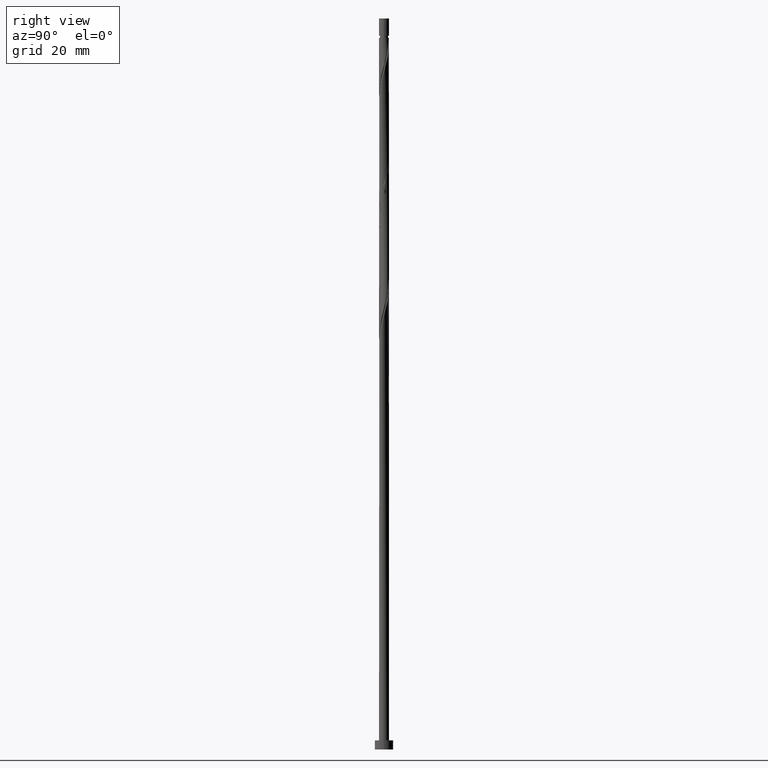
[diagram: clean part render]
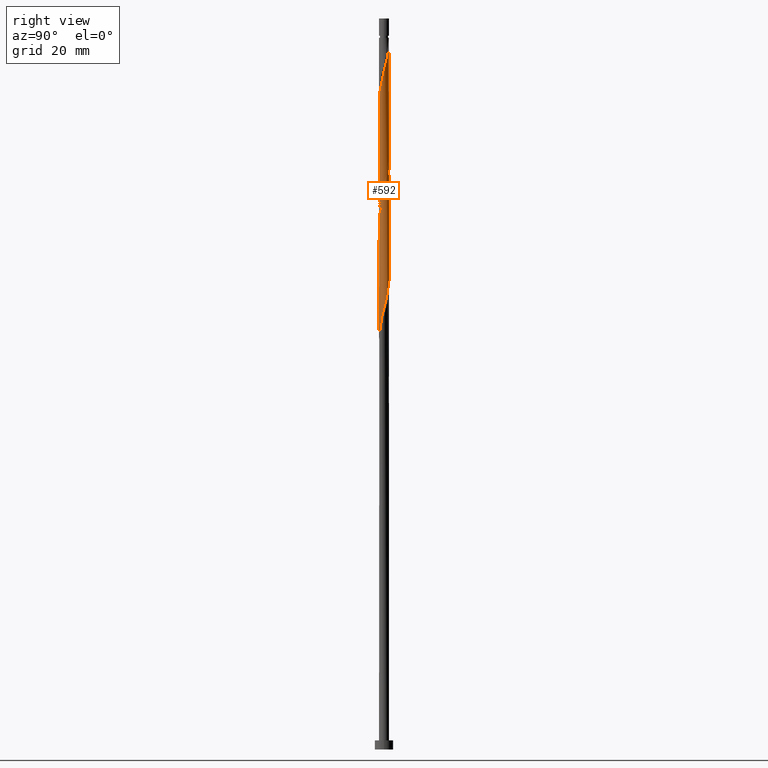
[diagram: same view with one face highlighted and labeled with its STEP entity id]
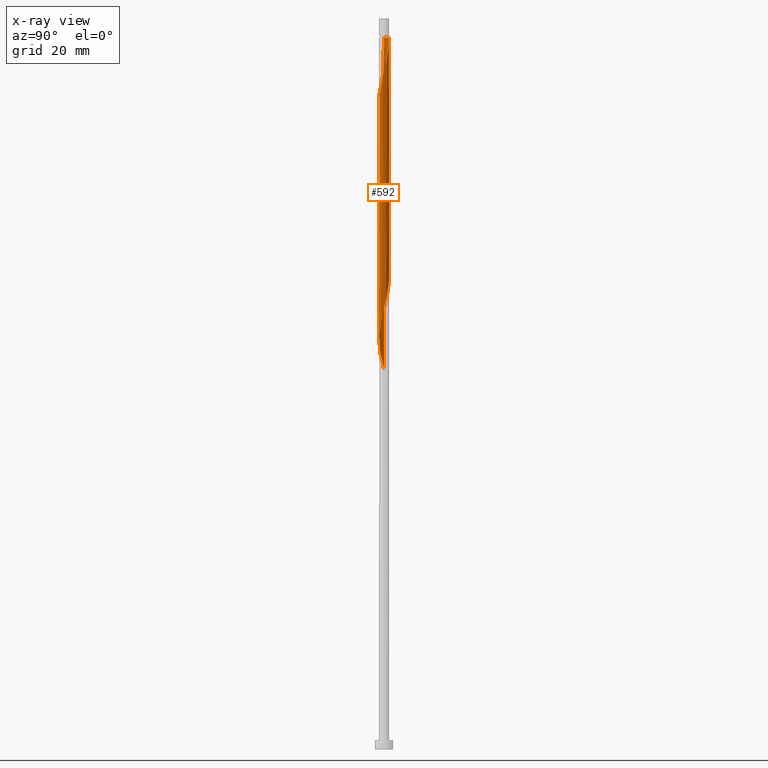
[diagram: x-ray of the same camera — body ghosted, the highlighted face saturated]
A machine part, right view. The second image highlights one B-rep face of the part: STEP entity #592.
The next image is the same camera in x-ray: the body ghosted, the highlighted face saturated — about 0% of this face is hidden behind the body in this view.
In plain terms, the highlighted cylindrical surface (bore or boss wall) has radius 1.1 mm, axis along (-0, -0, -1).
Its self-contained STEP definition (entity closure, byte-faithful):
#5 = CARTESIAN_POINT ( 'NONE',  ( 0.9826650609611464748, -0.5190209411318559285, 94.58110485723662464 ) ) ;
#21 = CARTESIAN_POINT ( 'NONE',  ( 0.2512589077020579431, -1.082535135996767206, 90.94474122087299861 ) ) ;
#37 = VERTEX_POINT ( 'NONE', #1525 ) ;
#49 = EDGE_CURVE ( 'NONE', #1517, #1114, #1267, .T. ) ;
#61 = CARTESIAN_POINT ( 'NONE',  ( 0.000000000000000000, 0.000000000000000000, 155.7932260693578428 ) ) ;
#74 = CARTESIAN_POINT ( 'NONE',  ( -0.3986627279676447921, 1.025216089090196903, 104.8841351602669079 ) ) ;
#82 = CARTESIAN_POINT ( 'NONE',  ( 1.100000000000001199, 1.271329759797166640E-15, 123.3093472153253742 ) ) ;
#83 = CARTESIAN_POINT ( 'NONE',  ( 0.6535858755450256741, 0.8987985662289481592, 100.6417109178427012 ) ) ;
#91 = CARTESIAN_POINT ( 'NONE',  ( -0.2512589077020578321, 1.082535135996767206, 104.2780745542063272 ) ) ;
#109 = CARTESIAN_POINT ( 'NONE',  ( -1.098179839110718037, 0.06325378226446302932, 109.7326200087517947 ) ) ;
#110 = CARTESIAN_POINT ( 'NONE',  ( 0.8803318733882239400, 0.6782544891587158897, 126.0962563723881686 ) ) ;
#123 = VECTOR ( 'NONE', #1207, 1000.000000000000000 ) ;
#129 = CARTESIAN_POINT ( 'NONE',  ( -0.9826650609611464748, 0.5190209411318560395, 134.5811048572366246 ) ) ;
#135 = CARTESIAN_POINT ( 'NONE',  ( -1.035758618384750696, -0.4027622671116078412, 84.88413516026693628 ) ) ;
#137 = CARTESIAN_POINT ( 'NONE',  ( -0.09367733623259097420, 1.096003903586282524, 130.3386806148123753 ) ) ;
#146 =( BOUNDED_CURVE ( )  B_SPLINE_CURVE ( 2, ( #1539, #476, #709, #1290, #486, #129, #220, #934, #353, #1199, #1402, #599, #137, #953, #836, #371, #817, #1299, #229, #110, #344, #1172, #1182, #1193, #699 ),
 .UNSPECIFIED., .F., .T. ) 
 B_SPLINE_CURVE_WITH_KNOTS ( ( 3, 2, 2, 2, 2, 2, 2, 2, 2, 2, 2, 2, 3 ),
 ( 0.4295252162417514397, 0.4318181818181818232, 0.4431818181818181768, 0.4545454545454545303, 0.4659090909090908839, 0.4772727272727272929, 0.4886363636363636465, 0.5000000000000000000, 0.5113636363636363535, 0.5227272727272727071, 0.5340909090909090606, 0.5454545454545454142, 0.5545252162417514397 ),
 .UNSPECIFIED. ) 
 CURVE ( )  GEOMETRIC_REPRESENTATION_ITEM ( )  RATIONAL_B_SPLINE_CURVE ( ( 0.9061101570135808858, 0.9072237824201631051, 0.9090909090909405910, 0.8998376744372426073, 0.9090909090909405910, 0.8998376744372426073, 0.9090909090909405910, 0.8998376744372426073, 0.9090909090909405910, 0.8998376744372426073, 0.9090909090909405910, 0.8998376744372426073, 0.9090909090909405910, 0.8998376744372426073, 0.9090909090909405910, 0.8998376744372426073, 0.9090909090909405910, 0.8998376744372426073, 0.9090909090909405910, 0.8998376744372426073, 0.9090909090909405910, 0.8998376744372426073, 0.9090909090909405910, 0.9017048011080199821, 0.9061101570135809968 ) ) 
 REPRESENTATION_ITEM ( '' )  );
#152 = CARTESIAN_POINT ( 'NONE',  ( -1.100000000000000089, 0.000000000000000000, 160.0000000000000000 ) ) ;
#154 = EDGE_CURVE ( 'NONE', #407, #1114, #146, .T. ) ;
#188 = CARTESIAN_POINT ( 'NONE',  ( -0.5460665482332321963, 0.9678970421836270432, 105.4901957663275738 ) ) ;
#189 = EDGE_CURVE ( 'NONE', #1100, #1260, #633, .T. ) ;
#196 = CARTESIAN_POINT ( 'NONE',  ( -0.9580452458864874288, -0.5405083781351616157, 112.1568624329941883 ) ) ;
#203 = DIRECTION ( 'NONE',  ( -0.000000000000000000, -0.000000000000000000, -1.000000000000000000 ) ) ;
#211 = CARTESIAN_POINT ( 'NONE',  ( 1.071516489199091593, 0.2487014543070787120, 97.61140788753962738 ) ) ;
#220 = CARTESIAN_POINT ( 'NONE',  ( -0.8896500927852523111, 0.6469333137249889676, 133.9750442511760014 ) ) ;
#224 = DIRECTION ( 'NONE',  ( -0.000000000000000000, -0.000000000000000000, -1.000000000000000000 ) ) ;
#228 = CARTESIAN_POINT ( 'NONE',  ( 0.3986627279676447921, -1.025216089090196903, 91.55080182693357926 ) ) ;
#229 = CARTESIAN_POINT ( 'NONE',  ( 0.7669588744666246960, 0.7885265276938319134, 126.7023169784487493 ) ) ;
#230 = CARTESIAN_POINT ( 'NONE',  ( 0.9826650609611466969, 0.5190209411318554844, 150.3386806148123469 ) ) ;
#239 = CARTESIAN_POINT ( 'NONE',  ( 1.035758618384751584, -0.4027622671116076747, 146.7023169784487493 ) ) ;
#248 = CARTESIAN_POINT ( 'NONE',  ( -0.2188972361634574926, -1.078000000000001402, 89.12655940269118560 ) ) ;
#312 = DIRECTION ( 'NONE',  ( -1.000000000000000000, 0.000000000000000000, 0.000000000000000000 ) ) ;
#316 = CARTESIAN_POINT ( 'NONE',  ( -0.6535858755450255630, -0.8987985662289481592, 113.9750442511760298 ) ) ;
#323 = CARTESIAN_POINT ( 'NONE',  ( -0.3986627279676454028, -1.025216089090197347, 140.0356503117821205 ) ) ;
#325 = DIRECTION ( 'NONE',  ( -1.000000000000000000, 0.000000000000000000, 0.000000000000000000 ) ) ;
#326 = CARTESIAN_POINT ( 'NONE',  ( 0.5460665482332320853, 0.9678970421836273763, 152.7629230390548116 ) ) ;
#331 = CARTESIAN_POINT ( 'NONE',  ( 0.06390423523687592533, -1.109472671175798286, 141.8538321299638767 ) ) ;
#334 = CARTESIAN_POINT ( 'NONE',  ( 0.7966351246093589245, -0.7748456863181224508, 120.0356503117820779 ) ) ;
#335 = CARTESIAN_POINT ( 'NONE',  ( 0.8803318733882241620, -0.6782544891587158897, 145.4901957663275596 ) ) ;
#343 = CARTESIAN_POINT ( 'NONE',  ( -0.6713508364212953383, 0.8713713642508746915, 106.0962563723881118 ) ) ;
#344 = CARTESIAN_POINT ( 'NONE',  ( 0.9580452458864873178, 0.5405083781351617267, 125.4901957663275311 ) ) ;
#353 = CARTESIAN_POINT ( 'NONE',  ( -0.6713508364212953383, 0.8713713642508746915, 132.7629230390547832 ) ) ;
#354 = CARTESIAN_POINT ( 'NONE',  ( 1.098179839110718481, 0.06325378226446277952, 148.5204987966305907 ) ) ;
#371 = CARTESIAN_POINT ( 'NONE',  ( 0.3738902370900390459, 1.046527328824204739, 128.5204987966305623 ) ) ;
#380 = CARTESIAN_POINT ( 'NONE',  ( -0.06390423523687623064, -1.109472671175797842, 89.73262000875178046 ) ) ;
#388 = CARTESIAN_POINT ( 'NONE',  ( 0.7966351246093589245, -0.7748456863181224508, 93.36898364511542070 ) ) ;
#406 = CARTESIAN_POINT ( 'NONE',  ( -0.06390423523688042173, 1.109472671175798508, 155.1871654632972479 ) ) ;
#407 = VERTEX_POINT ( 'NONE', #1159 ) ;
#417 = VERTEX_POINT ( 'NONE', #450 ) ;
#423 = CARTESIAN_POINT ( 'NONE',  ( -0.7669588744666250291, -0.7885265276938315804, 113.3689836451153923 ) ) ;
#429 = CARTESIAN_POINT ( 'NONE',  ( -0.9826650609611464748, 0.5190209411318560395, 107.9144381905699532 ) ) ;
#437 = CARTESIAN_POINT ( 'NONE',  ( 0.8896500927852525331, -0.6469333137249889676, 120.6417109178426728 ) ) ;
#445 = CARTESIAN_POINT ( 'NONE',  ( 1.089085318208004693, -0.2211482060314764464, 122.4598927360245142 ) ) ;
#446 = CARTESIAN_POINT ( 'NONE',  ( 0.6535858755450258961, -0.8987985662289482702, 144.2780745542063698 ) ) ;
#450 = CARTESIAN_POINT ( 'NONE',  ( -1.100000000000001199, -1.488203659997859560E-15, 83.30934721532540266 ) ) ;
#465 = CARTESIAN_POINT ( 'NONE',  ( 0.5460665482332320853, -0.9678970421836270432, 92.15686243299421676 ) ) ;
#476 = CARTESIAN_POINT ( 'NONE',  ( -1.100000000000001199, 0.03165307917620665407, 136.5205825439404634 ) ) ;
#477 = CARTESIAN_POINT ( 'NONE',  ( 0.9580452458864877618, -0.5405083781351618377, 146.0962563723881260 ) ) ;
#484 = VECTOR ( 'NONE', #203, 1000.000000000000000 ) ;
#486 = CARTESIAN_POINT ( 'NONE',  ( -1.035875189584575473, 0.3700845735816659654, 135.1871654632971911 ) ) ;
#493 = CARTESIAN_POINT ( 'NONE',  ( 0.8896500927852525331, -0.6469333137249889676, 93.97504425117600135 ) ) ;
#524 = ORIENTED_EDGE ( 'NONE', *, *, #1338, .F. ) ;
#537 = CARTESIAN_POINT ( 'NONE',  ( -1.100000000000001199, 1.084369501003464350E-16, 134.9437715900569401 ) ) ;
#554 = CARTESIAN_POINT ( 'NONE',  ( 0.7669588744666246960, 0.7885265276938319134, 100.0356503117820779 ) ) ;
#559 = VECTOR ( 'NONE', #1060, 1000.000000000000000 ) ;
#566 = CARTESIAN_POINT ( 'NONE',  ( -1.071516489199091593, -0.2487014543070790451, 110.9447412208729844 ) ) ;
#572 = CARTESIAN_POINT ( 'NONE',  ( 1.107274360013432490, 0.09464064150255011021, 97.00534728147906094 ) ) ;
#579 = CARTESIAN_POINT ( 'NONE',  ( -0.7966351246093584804, 0.7748456863181226728, 106.7023169784487777 ) ) ;
#592 = ADVANCED_FACE ( 'NONE', ( #1371 ), #1266, .T. ) ;
#598 = CARTESIAN_POINT ( 'NONE',  ( 0.6713508364212952273, -0.8713713642508748025, 92.76292303905479741 ) ) ;
#599 = CARTESIAN_POINT ( 'NONE',  ( -0.2512589077020578321, 1.082535135996767206, 130.9447412208729986 ) ) ;
#607 = CARTESIAN_POINT ( 'NONE',  ( -0.8803318733882244951, -0.6782544891587153346, 86.09625637238814022 ) ) ;
#608 = CARTESIAN_POINT ( 'NONE',  ( -0.9826650609611463638, -0.5190209411318559285, 137.0053472814790894 ) ) ;
#615 = CARTESIAN_POINT ( 'NONE',  ( 1.035875189584575473, -0.3700845735816660209, 95.18716546329720529 ) ) ;
#633 =( BOUNDED_CURVE ( )  B_SPLINE_CURVE ( 2, ( #962, #1528, #1430, #845, #1307, #608, #943, #1412, #904, #911, #323, #797, #1042, #331, #804, #1272, #1540, #446, #1393, #335, #477, #239, #722, #809, #354, #700, #827, #230, #915, #818, #1386, #326, #1373, #1138, #636, #406, #931 ),
 .UNSPECIFIED., .F., .T. ) 
 B_SPLINE_CURVE_WITH_KNOTS ( ( 3, 2, 2, 2, 2, 2, 2, 2, 2, 2, 2, 2, 2, 2, 2, 2, 2, 2, 3 ),
 ( 0.5545252162417509956, 0.5568181818181818787, 0.5681818181818181213, 0.5795454545454545858, 0.5909090909090909394, 0.6022727272727274039, 0.6136363636363637575, 0.6250000000000001110, 0.6363636363636364646, 0.6477272727272729291, 0.6590909090909093937, 0.6704545454545456362, 0.6818181818181821008, 0.6931818181818183433, 0.7045454545454548079, 0.7159090909090910504, 0.7272727272727275150, 0.7386363636363639795, 0.7500000000000003331 ),
 .UNSPECIFIED. ) 
 CURVE ( )  GEOMETRIC_REPRESENTATION_ITEM ( )  RATIONAL_B_SPLINE_CURVE ( ( 0.9061101570135814409, 0.9072237824201636602, 0.9090909090909415902, 0.8998376744372437175, 0.9090909090909415902, 0.8998376744372437175, 0.9090909090909415902, 0.8998376744372437175, 0.9090909090909415902, 0.8998376744372437175, 0.9090909090909415902, 0.8998376744372437175, 0.9090909090909415902, 0.8998376744372437175, 0.9090909090909415902, 0.8998376744372437175, 0.9090909090909415902, 0.8998376744372437175, 0.9090909090909415902, 0.8998376744372437175, 0.9090909090909415902, 0.8998376744372437175, 0.9090909090909415902, 0.8998376744372437175, 0.9090909090909415902, 0.8998376744372437175, 0.9090909090909415902, 0.8998376744372437175, 0.9090909090909415902, 0.8998376744372437175, 0.9090909090909415902, 0.8998376744372437175, 0.9090909090909415902, 0.8998376744372437175, 0.9090909090909415902, 0.8998376744372434954, 0.9090909090909418122 ) ) 
 REPRESENTATION_ITEM ( '' )  );
#636 = CARTESIAN_POINT ( 'NONE',  ( 0.09367733623259111297, 1.096003903586282746, 154.5811048572366246 ) ) ;
#665 = CARTESIAN_POINT ( 'NONE',  ( 0.2512589077020579431, -1.082535135996767206, 117.6114078875396558 ) ) ;
#674 = CARTESIAN_POINT ( 'NONE',  ( -1.035758618384750696, -0.4027622671116078412, 111.5508018269336219 ) ) ;
#682 = CARTESIAN_POINT ( 'NONE',  ( -0.3738902370900389349, -1.046527328824204739, 115.1871654632972621 ) ) ;
#690 = CARTESIAN_POINT ( 'NONE',  ( 1.098179839110718037, -0.06325378226446316809, 96.39928667541843765 ) ) ;
#698 = CARTESIAN_POINT ( 'NONE',  ( -0.06390423523687623064, -1.109472671175797842, 116.3992866754184519 ) ) ;
#699 = CARTESIAN_POINT ( 'NONE',  ( 1.100000000000001199, 1.271329759797166640E-15, 123.3093472153253742 ) ) ;
#700 = CARTESIAN_POINT ( 'NONE',  ( 1.089085318208004916, 0.2211482060314760301, 149.1265594026911572 ) ) ;
#709 = CARTESIAN_POINT ( 'NONE',  ( -1.098179839110718037, 0.06325378226446302932, 136.3992866754184377 ) ) ;
#722 = CARTESIAN_POINT ( 'NONE',  ( 1.071516489199092259, -0.2487014543070791284, 147.3083775845094010 ) ) ;
#727 = CARTESIAN_POINT ( 'NONE',  ( -1.071516489199091593, -0.2487014543070790451, 84.27807455420631300 ) ) ;
#779 = CARTESIAN_POINT ( 'NONE',  ( -0.8803318733882244951, -0.6782544891587153346, 112.7629230390547974 ) ) ;
#789 = CARTESIAN_POINT ( 'NONE',  ( 0.3738902370900390459, 1.046527328824204739, 101.8538321299639051 ) ) ;
#797 = CARTESIAN_POINT ( 'NONE',  ( -0.2512589077020578876, -1.082535135996767650, 140.6417109178426301 ) ) ;
#799 = CARTESIAN_POINT ( 'NONE',  ( 1.100000000000001199, 1.271329759797166640E-15, 123.3093472153253742 ) ) ;
#803 = CARTESIAN_POINT ( 'NONE',  ( 0.000000000000000000, 0.000000000000000000, 160.0000000000000000 ) ) ;
#804 = CARTESIAN_POINT ( 'NONE',  ( 0.2188972361634572983, -1.078000000000001624, 142.4598927360245284 ) ) ;
#808 = CARTESIAN_POINT ( 'NONE',  ( -0.2188972361634574926, -1.078000000000001402, 115.7932260693578286 ) ) ;
#809 = CARTESIAN_POINT ( 'NONE',  ( 1.107274360013432490, -0.09464064150255058205, 147.9144381905699390 ) ) ;
#817 = CARTESIAN_POINT ( 'NONE',  ( 0.5137380563175323323, 0.9726629475265762270, 127.9144381905699674 ) ) ;
#818 = CARTESIAN_POINT ( 'NONE',  ( 0.7966351246093590355, 0.7748456863181222287, 151.5508018269335651 ) ) ;
#826 = CARTESIAN_POINT ( 'NONE',  ( -0.3738902370900389349, -1.046527328824204739, 88.52049879663059073 ) ) ;
#827 = CARTESIAN_POINT ( 'NONE',  ( 1.035875189584575695, 0.3700845735816657989, 149.7326200087517805 ) ) ;
#835 = CARTESIAN_POINT ( 'NONE',  ( -0.6535858755450255630, -0.8987985662289481592, 87.30837758450934416 ) ) ;
#836 = CARTESIAN_POINT ( 'NONE',  ( 0.2188972361634576314, 1.078000000000001402, 129.1265594026911572 ) ) ;
#845 = CARTESIAN_POINT ( 'NONE',  ( -1.089085318208004916, -0.2211482060314761966, 135.7932260693578712 ) ) ;
#858 = CARTESIAN_POINT ( 'NONE',  ( 0.09367733623259061337, -1.096003903586282524, 90.33868061481237532 ) ) ;
#903 = CARTESIAN_POINT ( 'NONE',  ( -0.09367733623259097420, 1.096003903586282524, 103.6720139481457039 ) ) ;
#904 = CARTESIAN_POINT ( 'NONE',  ( -0.6713508364212954493, -0.8713713642508746915, 138.8235290996609024 ) ) ;
#911 = CARTESIAN_POINT ( 'NONE',  ( -0.5460665482332324183, -0.9678970421836270432, 139.4295897057214120 ) ) ;
#914 = CARTESIAN_POINT ( 'NONE',  ( -0.8896500927852523111, 0.6469333137249889676, 107.3083775845093584 ) ) ;
#915 = CARTESIAN_POINT ( 'NONE',  ( 0.8896500927852528662, 0.6469333137249887455, 150.9447412208729986 ) ) ;
#931 = CARTESIAN_POINT ( 'NONE',  ( -0.2188972361634883568, 1.078000000000312264, 155.7932260693578428 ) ) ;
#933 = CARTESIAN_POINT ( 'NONE',  ( 0.09367733623259061337, -1.096003903586282524, 117.0053472814790751 ) ) ;
#934 = CARTESIAN_POINT ( 'NONE',  ( -0.7966351246093584804, 0.7748456863181226728, 133.3689836451154349 ) ) ;
#942 = CARTESIAN_POINT ( 'NONE',  ( -0.7669588744666250291, -0.7885265276938315804, 86.70231697844873509 ) ) ;
#943 = CARTESIAN_POINT ( 'NONE',  ( -0.8896500927852528662, -0.6469333137249893007, 137.6114078875396842 ) ) ;
#953 = CARTESIAN_POINT ( 'NONE',  ( 0.06390423523687595309, 1.109472671175797842, 129.7326200087518089 ) ) ;
#958 =( BOUNDED_CURVE ( )  B_SPLINE_CURVE ( 2, ( #799, #1486, #1511, #445, #1392, #1052, #437, #334, #1282, #1037, #1365, #665, #933, #698, #808, #682, #1253, #316, #423, #779, #196, #674, #566, #1156, #109, #1401, #1027, #429, #914, #579, #343, #188, #74, #91, #903, #1375, #1268, #789, #1148, #83, #554, #1385, #1046, #1275, #211, #572, #690, #1164, #615, #5, #493, #388, #598, #465, #228, #21, #858, #380, #248, #826, #1421, #835, #942, #607, #1298, #135, #727, #1325, #1089 ),
 .UNSPECIFIED., .F., .T. ) 
 B_SPLINE_CURVE_WITH_KNOTS ( ( 3, 2, 2, 2, 2, 2, 2, 2, 2, 2, 2, 2, 2, 2, 2, 2, 2, 2, 2, 2, 2, 2, 2, 2, 2, 2, 2, 2, 2, 2, 2, 2, 2, 2, 3 ),
 ( 0.5545252162417514397, 0.5568181818181817677, 0.5681818181818182323, 0.5795454545454545858, 0.5909090909090909394, 0.6022727272727272929, 0.6136363636363636465, 0.6250000000000000000, 0.6363636363636363535, 0.6477272727272727071, 0.6590909090909090606, 0.6704545454545454142, 0.6818181818181817677, 0.6931818181818182323, 0.7045454545454545858, 0.7159090909090909394, 0.7272727272727272929, 0.7386363636363636465, 0.7500000000000000000, 0.7613636363636363535, 0.7727272727272727071, 0.7840909090909090606, 0.7954545454545454142, 0.8068181818181817677, 0.8181818181818182323, 0.8295454545454545858, 0.8409090909090909394, 0.8522727272727272929, 0.8636363636363636465, 0.8750000000000000000, 0.8863636363636363535, 0.8977272727272727071, 0.9090909090909090606, 0.9204545454545454142, 0.9295252162417512176 ),
 .UNSPECIFIED. ) 
 CURVE ( )  GEOMETRIC_REPRESENTATION_ITEM ( )  RATIONAL_B_SPLINE_CURVE ( ( 0.9061101570135809968, 0.9072237824201632161, 0.9090909090909405910, 0.8998376744372426073, 0.9090909090909405910, 0.8998376744372426073, 0.9090909090909405910, 0.8998376744372426073, 0.9090909090909405910, 0.8998376744372426073, 0.9090909090909405910, 0.8998376744372426073, 0.9090909090909405910, 0.8998376744372426073, 0.9090909090909405910, 0.8998376744372426073, 0.9090909090909405910, 0.8998376744372426073, 0.9090909090909405910, 0.8998376744372426073, 0.9090909090909405910, 0.8998376744372426073, 0.9090909090909405910, 0.8998376744372426073, 0.9090909090909405910, 0.8998376744372426073, 0.9090909090909405910, 0.8998376744372426073, 0.9090909090909405910, 0.8998376744372426073, 0.9090909090909405910, 0.8998376744372426073, 0.9090909090909405910, 0.8998376744372426073, 0.9090909090909405910, 0.8998376744372426073, 0.9090909090909405910, 0.8998376744372426073, 0.9090909090909405910, 0.8998376744372426073, 0.9090909090909405910, 0.8998376744372426073, 0.9090909090909405910, 0.8998376744372426073, 0.9090909090909405910, 0.8998376744372426073, 0.9090909090909405910, 0.8998376744372426073, 0.9090909090909405910, 0.8998376744372426073, 0.9090909090909405910, 0.8998376744372426073, 0.9090909090909405910, 0.8998376744372426073, 0.9090909090909405910, 0.8998376744372426073, 0.9090909090909405910, 0.8998376744372426073, 0.9090909090909405910, 0.8998376744372426073, 0.9090909090909405910, 0.8998376744372426073, 0.9090909090909405910, 0.8998376744372426073, 0.9090909090909405910, 0.8998376744372426073, 0.9090909090909405910, 0.9017048011080202041, 0.9061101570135807748 ) ) 
 REPRESENTATION_ITEM ( '' )  );
#961 = CARTESIAN_POINT ( 'NONE',  ( -0.2188972361634883568, 1.078000000000312264, 155.7932260693578428 ) ) ;
#962 = CARTESIAN_POINT ( 'NONE',  ( -1.100000000000001199, 1.084369501003464350E-16, 134.9437715900569401 ) ) ;
#979 = CARTESIAN_POINT ( 'NONE',  ( 1.100000000000000089, 1.347111479062088503E-16, 155.7932260693578428 ) ) ;
#1009 = ORIENTED_EDGE ( 'NONE', *, *, #49, .T. ) ;
#1027 = CARTESIAN_POINT ( 'NONE',  ( -1.035875189584575473, 0.3700845735816659654, 108.5204987966305481 ) ) ;
#1037 = CARTESIAN_POINT ( 'NONE',  ( 0.5460665482332320853, -0.9678970421836270432, 118.8235290996608455 ) ) ;
#1042 = CARTESIAN_POINT ( 'NONE',  ( -0.09367733623259101583, -1.096003903586282746, 141.2477715239032818 ) ) ;
#1043 = ORIENTED_EDGE ( 'NONE', *, *, #154, .F. ) ;
#1046 = CARTESIAN_POINT ( 'NONE',  ( 0.9580452458864873178, 0.5405083781351617267, 98.82352909966085974 ) ) ;
#1052 = CARTESIAN_POINT ( 'NONE',  ( 0.9826650609611464748, -0.5190209411318559285, 121.2477715239033103 ) ) ;
#1060 = DIRECTION ( 'NONE',  ( -0.000000000000000000, -0.000000000000000000, -1.000000000000000000 ) ) ;
#1089 = CARTESIAN_POINT ( 'NONE',  ( -1.100000000000001199, -1.488203659997859560E-15, 83.30934721532540266 ) ) ;
#1093 = ORIENTED_EDGE ( 'NONE', *, *, #1300, .T. ) ;
#1100 = VERTEX_POINT ( 'NONE', #537 ) ;
#1114 = VERTEX_POINT ( 'NONE', #82 ) ;
#1126 = EDGE_LOOP ( 'NONE', ( #524, #1280, #1217, #1093, #1500, #1252, #1009, #1043 ) ) ;
#1132 = AXIS2_PLACEMENT_3D ( 'NONE', #803, #1169, #312 ) ;
#1134 = EDGE_CURVE ( 'NONE', #37, #1260, #1254, .T. ) ;
#1138 = CARTESIAN_POINT ( 'NONE',  ( 0.2512589077020579986, 1.082535135996767650, 153.9750442511760298 ) ) ;
#1148 = CARTESIAN_POINT ( 'NONE',  ( 0.5137380563175323323, 0.9726629475265762270, 101.2477715239032818 ) ) ;
#1156 = CARTESIAN_POINT ( 'NONE',  ( -1.107274360013432268, -0.09464064150255047103, 110.3386806148123753 ) ) ;
#1159 = CARTESIAN_POINT ( 'NONE',  ( -1.100000000000001199, 5.234887246223626929E-17, 136.6426805486587170 ) ) ;
#1164 = CARTESIAN_POINT ( 'NONE',  ( 1.089085318208004693, -0.2211482060314764464, 95.79322606935784279 ) ) ;
#1169 = DIRECTION ( 'NONE',  ( -0.000000000000000000, -0.000000000000000000, -1.000000000000000000 ) ) ;
#1172 = CARTESIAN_POINT ( 'NONE',  ( 1.035758618384751140, 0.4027622671116070641, 124.8841351602669221 ) ) ;
#1181 = LINE ( 'NONE', #152, #559 ) ;
#1182 = CARTESIAN_POINT ( 'NONE',  ( 1.071516489199091593, 0.2487014543070787120, 124.2780745542063130 ) ) ;
#1192 = CARTESIAN_POINT ( 'NONE',  ( -1.100000000000000089, 0.000000000000000000, 160.0000000000000000 ) ) ;
#1193 = CARTESIAN_POINT ( 'NONE',  ( 1.100000000000002309, 0.1259818201236323210, 123.7953071682967021 ) ) ;
#1199 = CARTESIAN_POINT ( 'NONE',  ( -0.5460665482332321963, 0.9678970421836270432, 132.1568624329942168 ) ) ;
#1207 = DIRECTION ( 'NONE',  ( -0.000000000000000000, -0.000000000000000000, -1.000000000000000000 ) ) ;
#1217 = ORIENTED_EDGE ( 'NONE', *, *, #189, .F. ) ;
#1243 = EDGE_CURVE ( 'NONE', #1114, #417, #958, .T. ) ;
#1252 = ORIENTED_EDGE ( 'NONE', *, *, #49, .F. ) ;
#1253 = CARTESIAN_POINT ( 'NONE',  ( -0.5137380563175321102, -0.9726629475265762270, 114.5811048572366388 ) ) ;
#1254 = CIRCLE ( 'NONE', #1303, 1.099999999999992983 ) ;
#1260 = VERTEX_POINT ( 'NONE', #961 ) ;
#1266 = CYLINDRICAL_SURFACE ( 'NONE', #1132, 1.100000000000000089 ) ;
#1267 = LINE ( 'NONE', #1273, #484 ) ;
#1268 = CARTESIAN_POINT ( 'NONE',  ( 0.2188972361634576314, 1.078000000000001402, 102.4598927360244858 ) ) ;
#1272 = CARTESIAN_POINT ( 'NONE',  ( 0.3738902370900387129, -1.046527328824204961, 143.0659533420851517 ) ) ;
#1273 = CARTESIAN_POINT ( 'NONE',  ( 1.100000000000000089, 1.347111479062088503E-16, 160.0000000000000000 ) ) ;
#1275 = CARTESIAN_POINT ( 'NONE',  ( 1.035758618384751140, 0.4027622671116070641, 98.21746849360026488 ) ) ;
#1280 = ORIENTED_EDGE ( 'NONE', *, *, #1134, .T. ) ;
#1282 = CARTESIAN_POINT ( 'NONE',  ( 0.6713508364212952273, -0.8713713642508748025, 119.4295897057214404 ) ) ;
#1290 = CARTESIAN_POINT ( 'NONE',  ( -1.089085318208004693, 0.2211482060314762799, 135.7932260693578428 ) ) ;
#1298 = CARTESIAN_POINT ( 'NONE',  ( -0.9580452458864874288, -0.5405083781351616157, 85.49019576632753115 ) ) ;
#1299 = CARTESIAN_POINT ( 'NONE',  ( 0.6535858755450256741, 0.8987985662289481592, 127.3083775845094152 ) ) ;
#1300 = EDGE_CURVE ( 'NONE', #1100, #417, #1317, .T. ) ;
#1303 = AXIS2_PLACEMENT_3D ( 'NONE', #61, #224, #325 ) ;
#1307 = CARTESIAN_POINT ( 'NONE',  ( -1.035875189584575695, -0.3700845735816660209, 136.3992866754184661 ) ) ;
#1317 = LINE ( 'NONE', #1192, #123 ) ;
#1325 = CARTESIAN_POINT ( 'NONE',  ( -1.100000000000001421, -0.1259818201236357349, 83.79530716829671633 ) ) ;
#1338 = EDGE_CURVE ( 'NONE', #37, #407, #1181, .T. ) ;
#1365 = CARTESIAN_POINT ( 'NONE',  ( 0.3986627279676447921, -1.025216089090196903, 118.2174684936002791 ) ) ;
#1371 = FACE_OUTER_BOUND ( 'NONE', #1126, .T. ) ;
#1373 = CARTESIAN_POINT ( 'NONE',  ( 0.3986627279676449032, 1.025216089090197347, 153.3689836451154065 ) ) ;
#1375 = CARTESIAN_POINT ( 'NONE',  ( 0.06390423523687595309, 1.109472671175797842, 103.0659533420850664 ) ) ;
#1385 = CARTESIAN_POINT ( 'NONE',  ( 0.8803318733882239400, 0.6782544891587158897, 99.42958970572148303 ) ) ;
#1386 = CARTESIAN_POINT ( 'NONE',  ( 0.6713508364212954493, 0.8713713642508750246, 152.1568624329942168 ) ) ;
#1392 = CARTESIAN_POINT ( 'NONE',  ( 1.035875189584575473, -0.3700845735816660209, 121.8538321299638767 ) ) ;
#1393 = CARTESIAN_POINT ( 'NONE',  ( 0.7669588744666251401, -0.7885265276938321355, 144.8841351602669363 ) ) ;
#1401 = CARTESIAN_POINT ( 'NONE',  ( -1.089085318208004693, 0.2211482060314762799, 109.1265594026911856 ) ) ;
#1402 = CARTESIAN_POINT ( 'NONE',  ( -0.3986627279676447921, 1.025216089090196903, 131.5508018269335935 ) ) ;
#1412 = CARTESIAN_POINT ( 'NONE',  ( -0.7966351246093585914, -0.7748456863181226728, 138.2174684936002507 ) ) ;
#1421 = CARTESIAN_POINT ( 'NONE',  ( -0.5137380563175321102, -0.9726629475265762270, 87.91443819056995324 ) ) ;
#1430 = CARTESIAN_POINT ( 'NONE',  ( -1.098179839110718259, -0.06325378226446287666, 135.1871654632972479 ) ) ;
#1486 = CARTESIAN_POINT ( 'NONE',  ( 1.100000000000001199, -0.03165307917620760469, 123.1872492106071348 ) ) ;
#1500 = ORIENTED_EDGE ( 'NONE', *, *, #1243, .F. ) ;
#1511 = CARTESIAN_POINT ( 'NONE',  ( 1.098179839110718037, -0.06325378226446316809, 123.0659533420851091 ) ) ;
#1517 = VERTEX_POINT ( 'NONE', #979 ) ;
#1525 = CARTESIAN_POINT ( 'NONE',  ( -1.099999999999992983, 0.000000000000000000, 155.7932260693578428 ) ) ;
#1528 = CARTESIAN_POINT ( 'NONE',  ( -1.100000000000001865, -0.03165307917619991640, 135.0658695947751653 ) ) ;
#1539 = CARTESIAN_POINT ( 'NONE',  ( -1.100000000000001199, 5.234887246223626929E-17, 136.6426805486587170 ) ) ;
#1540 = CARTESIAN_POINT ( 'NONE',  ( 0.5137380563175319992, -0.9726629475265770042, 143.6720139481457466 ) ) ;